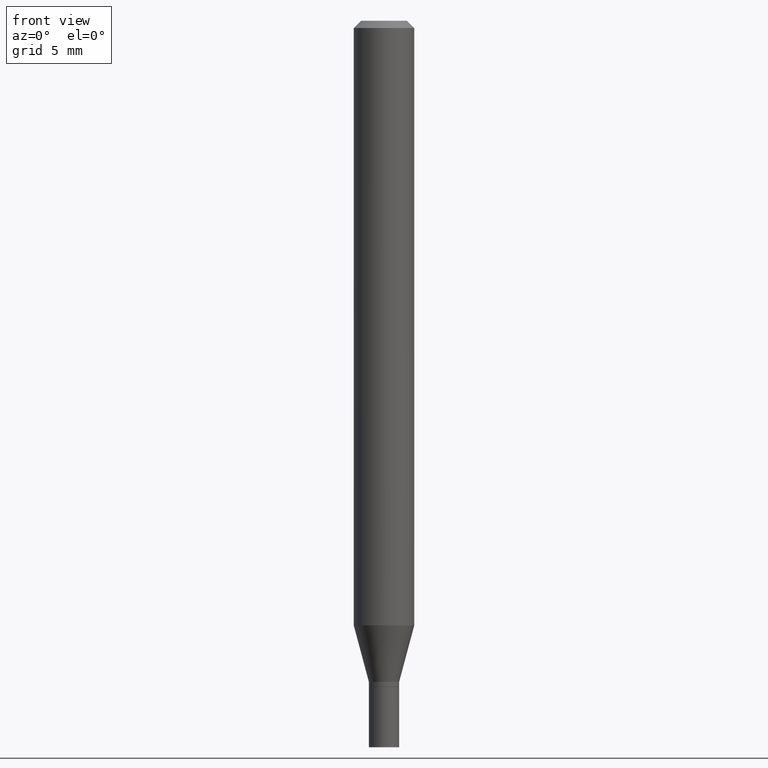
[diagram: clean part render]
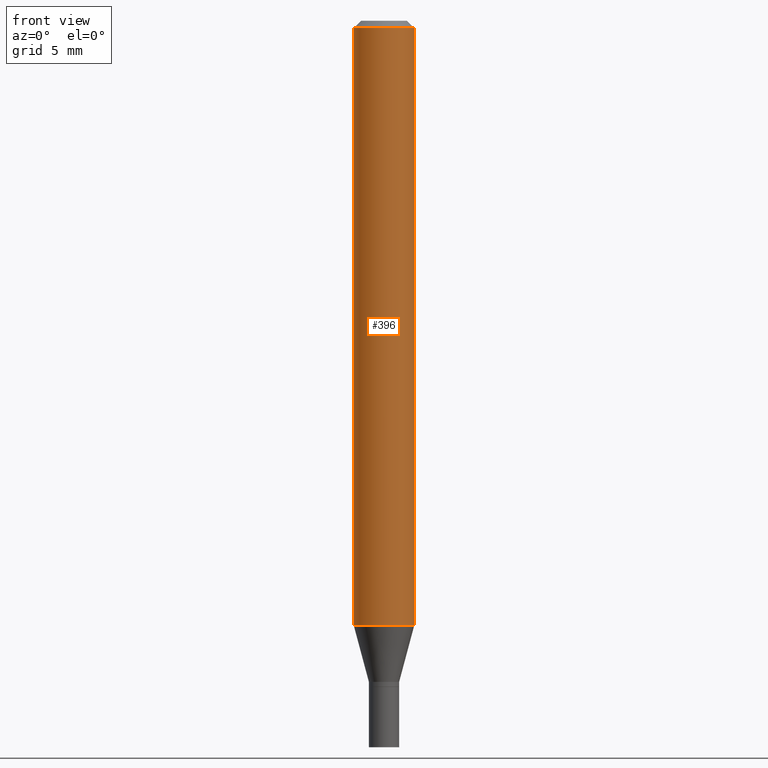
[diagram: same view with one face highlighted and labeled with its STEP entity id]
A machine part, front view. The second image highlights one B-rep face of the part: STEP entity #396.
In plain terms, the highlighted cylindrical surface (edge-blend (fillet) strip) has radius 1.5875 mm, axis along (-0, 0, 1).
Its self-contained STEP definition (entity closure, byte-faithful):
#9 = CYLINDRICAL_SURFACE ( 'NONE', #111, 0.06250000000000000000 ) ;
#17 = DIRECTION ( 'NONE',  ( -2.445468806185136597E-29, 3.491481338843145583E-15, 1.000000000000000000 ) ) ;
#26 = ORIENTED_EDGE ( 'NONE', *, *, #417, .F. ) ;
#40 = VERTEX_POINT ( 'NONE', #385 ) ;
#86 = AXIS2_PLACEMENT_3D ( 'NONE', #265, #122, #263 ) ;
#87 = DIRECTION ( 'NONE',  ( 1.000000000000000000, -6.982962677686266711E-15, 0.000000000000000000 ) ) ;
#111 = AXIS2_PLACEMENT_3D ( 'NONE', #252, #117, #406 ) ;
#117 = DIRECTION ( 'NONE',  ( -2.445468806185136597E-29, 3.491481338843145583E-15, 1.000000000000000000 ) ) ;
#122 = DIRECTION ( 'NONE',  ( -2.445468806185136597E-29, 3.491481338843145583E-15, 1.000000000000000000 ) ) ;
#141 = EDGE_LOOP ( 'NONE', ( #283, #180, #143, #26 ) ) ;
#143 = ORIENTED_EDGE ( 'NONE', *, *, #395, .T. ) ;
#149 = VECTOR ( 'NONE', #203, 39.37007874015748143 ) ;
#159 = CARTESIAN_POINT ( 'NONE',  ( 3.668203209277705088E-31, -5.237222008264718399E-17, -0.01499999999999999944 ) ) ;
#165 = AXIS2_PLACEMENT_3D ( 'NONE', #159, #17, #87 ) ;
#180 = ORIENTED_EDGE ( 'NONE', *, *, #403, .T. ) ;
#193 = CARTESIAN_POINT ( 'NONE',  ( 0.06250000000000000000, -4.364351673553916694E-16, 3.047610484872459871E-30 ) ) ;
#199 = VECTOR ( 'NONE', #323, 39.37007874015748143 ) ;
#203 = DIRECTION ( 'NONE',  ( -2.445468806185136877E-29, 3.491481338843145188E-15, 1.000000000000000000 ) ) ;
#215 = VERTEX_POINT ( 'NONE', #400 ) ;
#218 = VERTEX_POINT ( 'NONE', #458 ) ;
#252 = CARTESIAN_POINT ( 'NONE',  ( 0.000000000000000000, 0.000000000000000000, 0.000000000000000000 ) ) ;
#262 = CIRCLE ( 'NONE', #165, 0.06250000000000000000 ) ;
#263 = DIRECTION ( 'NONE',  ( 1.000000000000000000, -6.982962677686270655E-15, 0.000000000000000000 ) ) ;
#265 = CARTESIAN_POINT ( 'NONE',  ( 3.052858238161217332E-29, -4.358672472825852637E-15, -1.248373412263471760 ) ) ;
#270 = LINE ( 'NONE', #414, #149 ) ;
#283 = ORIENTED_EDGE ( 'NONE', *, *, #434, .F. ) ;
#316 = VERTEX_POINT ( 'NONE', #465 ) ;
#323 = DIRECTION ( 'NONE',  ( -2.445468806185136877E-29, 3.491481338843145188E-15, 1.000000000000000000 ) ) ;
#359 = LINE ( 'NONE', #193, #199 ) ;
#385 = CARTESIAN_POINT ( 'NONE',  ( -0.06250000000000000000, -3.914583262975789231E-15, -1.248373412263471760 ) ) ;
#395 = EDGE_CURVE ( 'NONE', #218, #316, #359, .T. ) ;
#396 = ADVANCED_FACE ( 'NONE', ( #438 ), #9, .T. ) ;
#400 = CARTESIAN_POINT ( 'NONE',  ( -0.06250000000000000000, -1.761433136604187439E-15, -0.01499999999999999944 ) ) ;
#403 = EDGE_CURVE ( 'NONE', #40, #218, #433, .T. ) ;
#406 = DIRECTION ( 'NONE',  ( 1.000000000000000000, -6.982962677686266711E-15, 4.876176775795935793E-29 ) ) ;
#414 = CARTESIAN_POINT ( 'NONE',  ( -0.06250000000000000000, 4.440892098500626162E-16, -3.074334431409316114E-30 ) ) ;
#417 = EDGE_CURVE ( 'NONE', #215, #316, #262, .T. ) ;
#433 = CIRCLE ( 'NONE', #86, 0.06250000000000000000 ) ;
#434 = EDGE_CURVE ( 'NONE', #40, #215, #270, .T. ) ;
#438 = FACE_OUTER_BOUND ( 'NONE', #141, .T. ) ;
#458 = CARTESIAN_POINT ( 'NONE',  ( 0.06250000000000000000, -4.795107640181243517E-15, -1.248373412263471760 ) ) ;
#465 = CARTESIAN_POINT ( 'NONE',  ( 0.06250000000000000000, -4.888073874380388472E-16, -0.01499999999999999944 ) ) ;